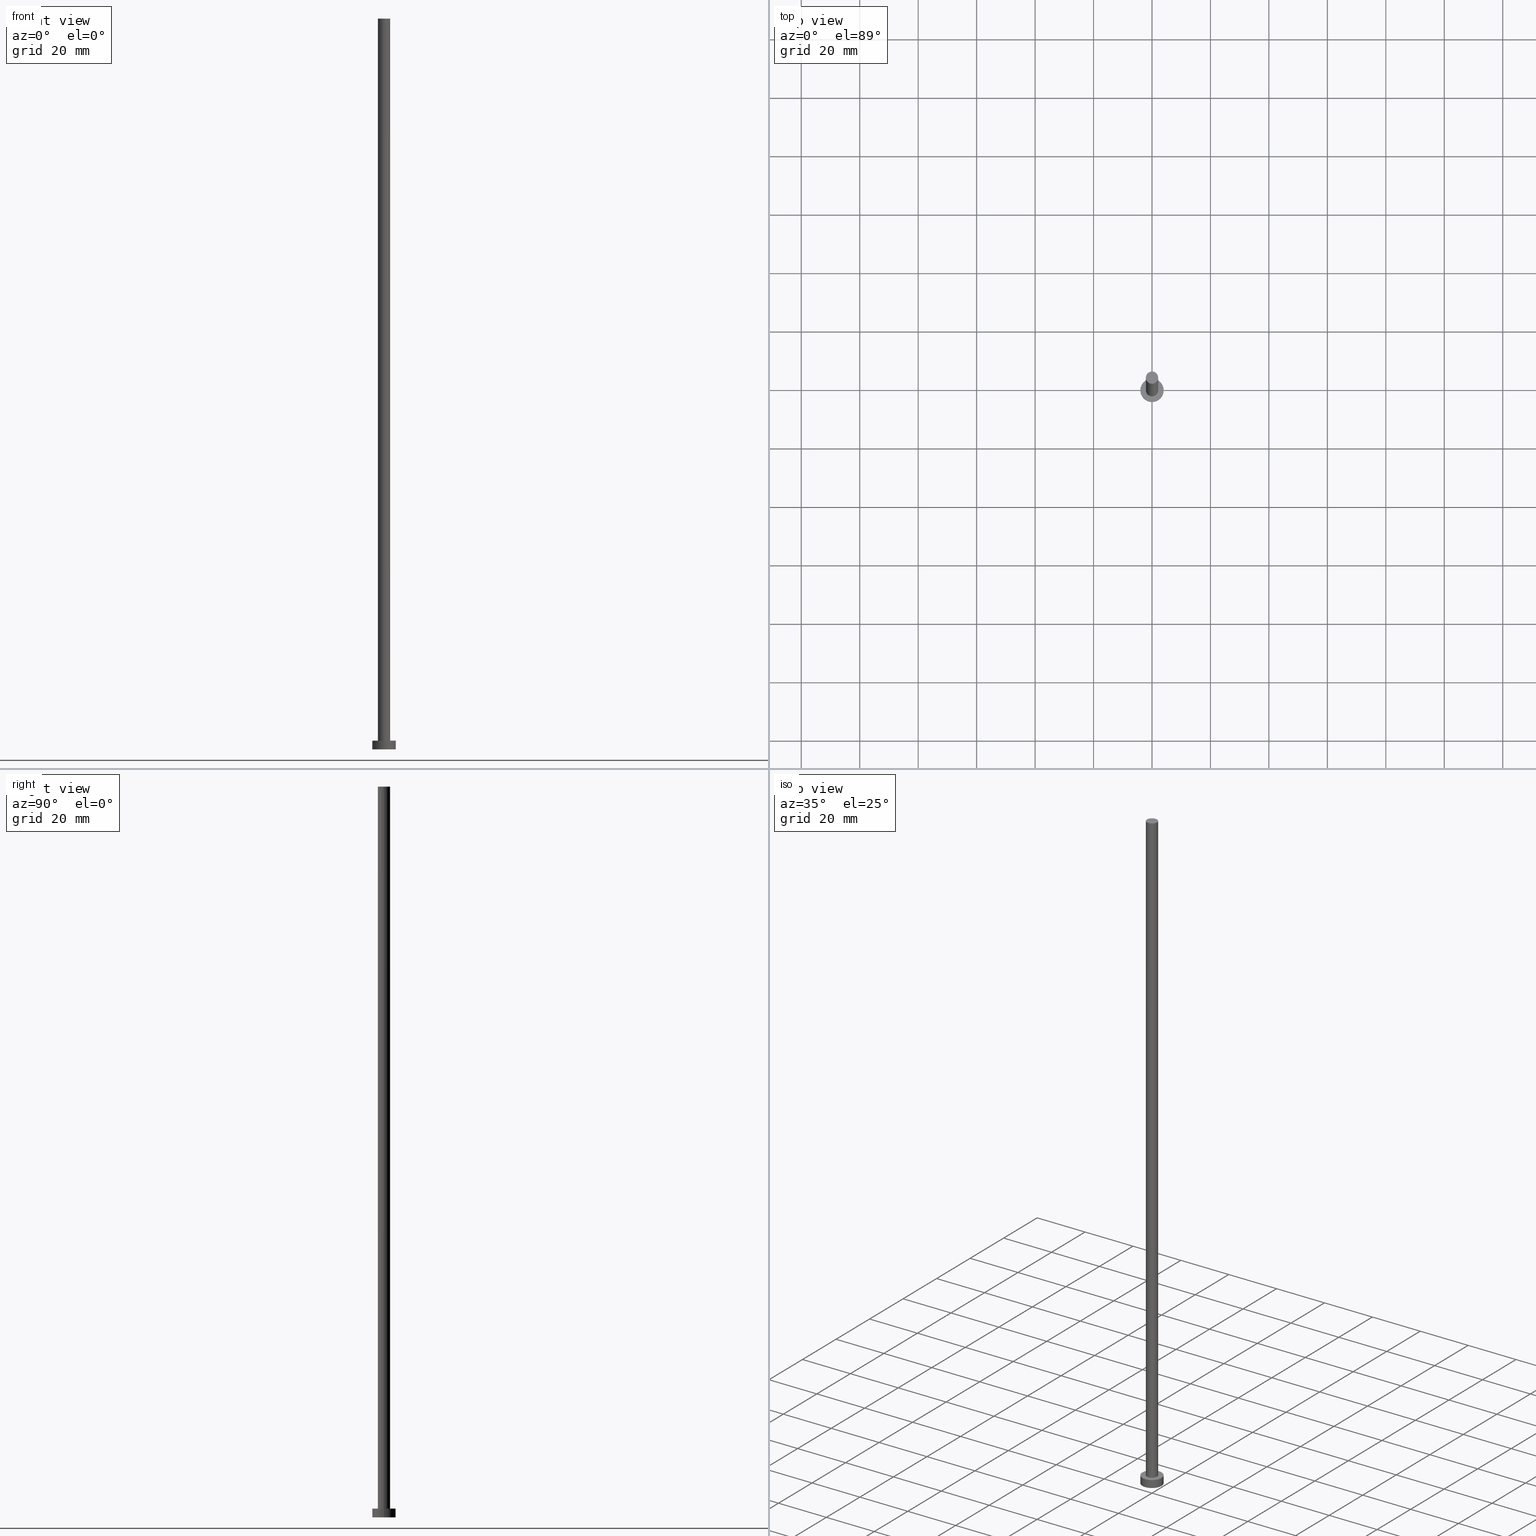
[diagram: canonical four-view strip — front | top / right | iso, engineering-drawing reading convention]
A machine part, canonical four-view strip (front | top / right | iso — engineering-drawing reading convention). The complete STEP part file that produces these views, byte-faithful:
ISO-10303-21;
HEADER;
FILE_DESCRIPTION (( 'STEP AP203' ),
    '1' );
FILE_NAME ('a9a1.STEP',
    '2023-02-12T12:36:44',
    ( '' ),
    ( '' ),
    'SwSTEP 2.0',
    'SolidWorks 2019',
    '' );
FILE_SCHEMA (( 'CONFIG_CONTROL_DESIGN' ));
ENDSEC;

DATA;
#1 = APPROVAL_DATE_TIME ( #62, #197 ) ;
#2 = SHAPE_DEFINITION_REPRESENTATION ( #76, #108 ) ;
#3 = APPROVAL_PERSON_ORGANIZATION ( #157, #22, #192 ) ;
#4 = DIRECTION ( 'NONE',  ( 0.000000000000000000, 0.000000000000000000, 1.000000000000000000 ) ) ;
#5 = CYLINDRICAL_SURFACE ( 'NONE', #156, 2.100000000000000089 ) ;
#6 = APPROVAL_PERSON_ORGANIZATION ( #216, #166, #126 ) ;
#7 = CARTESIAN_POINT ( 'NONE',  ( 0.000000000000000000, 0.000000000000000000, 0.000000000000000000 ) ) ;
#8 = UNCERTAINTY_MEASURE_WITH_UNIT (LENGTH_MEASURE( 1.000000000000000082E-05 ), #225, 'distance_accuracy_value', 'NONE');
#9 = AXIS2_PLACEMENT_3D ( 'NONE', #97, #99, #117 ) ;
#10 = EDGE_CURVE ( 'NONE', #17, #120, #160, .T. ) ;
#11 = DIRECTION ( 'NONE',  ( -1.000000000000000000, 0.000000000000000000, 0.000000000000000000 ) ) ;
#12 = DIRECTION ( 'NONE',  ( 1.000000000000000000, 0.000000000000000000, 0.000000000000000000 ) ) ;
#13 = CARTESIAN_POINT ( 'NONE',  ( -2.100000000000000089, 0.000000000000000000, 250.0000000000000000 ) ) ;
#14 = PERSON_AND_ORGANIZATION ( #253, #72 ) ;
#15 = EDGE_CURVE ( 'NONE', #17, #186, #174, .T. ) ;
#16 = CC_DESIGN_APPROVAL ( #166, ( #121 ) ) ;
#17 = VERTEX_POINT ( 'NONE', #244 ) ;
#18 = PERSON_AND_ORGANIZATION ( #253, #72 ) ;
#19 = EDGE_LOOP ( 'NONE', ( #102, #209, #138, #118 ) ) ;
#20 = MECHANICAL_CONTEXT ( 'NONE', #207, 'mechanical' ) ;
#21 = CARTESIAN_POINT ( 'NONE',  ( 0.000000000000000000, 0.000000000000000000, 250.0000000000000000 ) ) ;
#22 = APPROVAL ( #38, 'NEUR�EN�' ) ;
#23 = AXIS2_PLACEMENT_3D ( 'NONE', #142, #115, #12 ) ;
#24 = COORDINATED_UNIVERSAL_TIME_OFFSET ( 1, 0, .AHEAD. ) ;
#25 = CIRCLE ( 'NONE', #254, 2.100000000000000089 ) ;
#26 = DIRECTION ( 'NONE',  ( 1.000000000000000000, 0.000000000000000000, 0.000000000000000000 ) ) ;
#27 = PLANE ( 'NONE',  #116 ) ;
#28 = DIRECTION ( 'NONE',  ( 1.000000000000000000, 0.000000000000000000, 0.000000000000000000 ) ) ;
#29 = DIRECTION ( 'NONE',  ( -1.000000000000000000, 0.000000000000000000, 0.000000000000000000 ) ) ;
#30 = CARTESIAN_POINT ( 'NONE',  ( 2.100000000000000089, 2.571758278209441957E-16, 250.0000000000000000 ) ) ;
#31 = LOCAL_TIME ( 13, 36, 44.00000000000000000, #182 ) ;
#32 = EDGE_LOOP ( 'NONE', ( #158, #178 ) ) ;
#33 = VECTOR ( 'NONE', #63, 1000.000000000000000 ) ;
#34 = CC_DESIGN_SECURITY_CLASSIFICATION ( #121, ( #218 ) ) ;
#35 = ORIENTED_EDGE ( 'NONE', *, *, #41, .T. ) ;
#36 = LINE ( 'NONE', #135, #39 ) ;
#37 = EDGE_CURVE ( 'NONE', #59, #78, #88, .T. ) ;
#38 = APPROVAL_STATUS ( 'not_yet_approved' ) ;
#39 = VECTOR ( 'NONE', #168, 1000.000000000000000 ) ;
#40 = ORIENTED_EDGE ( 'NONE', *, *, #81, .T. ) ;
#41 = EDGE_CURVE ( 'NONE', #56, #59, #137, .T. ) ;
#42 = CARTESIAN_POINT ( 'NONE',  ( 0.000000000000000000, 0.000000000000000000, 3.000000000000000000 ) ) ;
#43 = APPROVAL_STATUS ( 'not_yet_approved' ) ;
#44 = COORDINATED_UNIVERSAL_TIME_OFFSET ( 1, 0, .AHEAD. ) ;
#45 = DIRECTION ( 'NONE',  ( 0.000000000000000000, 0.000000000000000000, 1.000000000000000000 ) ) ;
#46 = DIRECTION ( 'NONE',  ( 1.000000000000000000, 0.000000000000000000, 0.000000000000000000 ) ) ;
#47 = CC_DESIGN_APPROVAL ( #197, ( #87 ) ) ;
#48 = AXIS2_PLACEMENT_3D ( 'NONE', #7, #94, #89 ) ;
#49 = CYLINDRICAL_SURFACE ( 'NONE', #75, 2.100000000000000089 ) ;
#50 = EDGE_CURVE ( 'NONE', #78, #59, #66, .T. ) ;
#51 = PLANE ( 'NONE',  #48 ) ;
#52 = EDGE_CURVE ( 'NONE', #110, #120, #224, .T. ) ;
#53 = CYLINDRICAL_SURFACE ( 'NONE', #100, 4.000000000000000000 ) ;
#54 = EDGE_LOOP ( 'NONE', ( #58, #141 ) ) ;
#55 = CARTESIAN_POINT ( 'NONE',  ( 0.000000000000000000, 0.000000000000000000, 3.000000000000000000 ) ) ;
#56 = VERTEX_POINT ( 'NONE', #131 ) ;
#57 = APPROVAL_DATE_TIME ( #195, #22 ) ;
#58 = ORIENTED_EDGE ( 'NONE', *, *, #37, .F. ) ;
#59 = VERTEX_POINT ( 'NONE', #240 ) ;
#60 = CIRCLE ( 'NONE', #199, 4.000000000000000000 ) ;
#61 = EDGE_CURVE ( 'NONE', #154, #78, #71, .T. ) ;
#62 = DATE_AND_TIME ( #233, #133 ) ;
#63 = DIRECTION ( 'NONE',  ( -0.000000000000000000, -0.000000000000000000, -1.000000000000000000 ) ) ;
#64 = DATE_AND_TIME ( #177, #196 ) ;
#65 = COORDINATED_UNIVERSAL_TIME_OFFSET ( 1, 0, .AHEAD. ) ;
#66 = CIRCLE ( 'NONE', #113, 2.100000000000000089 ) ;
#67 = PRODUCT_RELATED_PRODUCT_CATEGORY ( 'detail', '', ( #95 ) ) ;
#68 = DIRECTION ( 'NONE',  ( 0.000000000000000000, 0.000000000000000000, 1.000000000000000000 ) ) ;
#69 = PLANE ( 'NONE',  #200 ) ;
#70 = CC_DESIGN_DATE_AND_TIME_ASSIGNMENT ( #139, #143, ( #87 ) ) ;
#71 = LINE ( 'NONE', #148, #153 ) ;
#72 = ORGANIZATION ( 'NEUR�EN�', 'NEUR�EN�', '' ) ;
#73 = DIRECTION ( 'NONE',  ( 0.000000000000000000, 0.000000000000000000, 1.000000000000000000 ) ) ;
#74 = DIRECTION ( 'NONE',  ( 1.000000000000000000, 0.000000000000000000, 0.000000000000000000 ) ) ;
#75 = AXIS2_PLACEMENT_3D ( 'NONE', #130, #202, #29 ) ;
#76 = PRODUCT_DEFINITION_SHAPE ( 'NONE', 'NONE',  #87 ) ;
#77 = ORIENTED_EDGE ( 'NONE', *, *, #52, .F. ) ;
#78 = VERTEX_POINT ( 'NONE', #152 ) ;
#79 = APPROVAL_PERSON_ORGANIZATION ( #215, #197, #212 ) ;
#80 = CALENDAR_DATE ( 2023, 12, 2 ) ;
#81 = EDGE_CURVE ( 'NONE', #120, #110, #147, .T. ) ;
#82 = DIRECTION ( 'NONE',  ( 0.000000000000000000, 0.000000000000000000, 1.000000000000000000 ) ) ;
#83 = AXIS2_PLACEMENT_3D ( 'NONE', #21, #237, #74 ) ;
#84 = SECURITY_CLASSIFICATION_LEVEL ( 'unclassified' ) ;
#85 = DIRECTION ( 'NONE',  ( 0.000000000000000000, 0.000000000000000000, 1.000000000000000000 ) ) ;
#86 = PERSON_AND_ORGANIZATION_ROLE ( 'creator' ) ;
#87 = PRODUCT_DEFINITION ( 'NEZN�M�', '', #218, #205 ) ;
#88 = CIRCLE ( 'NONE', #9, 2.100000000000000089 ) ;
#89 = DIRECTION ( 'NONE',  ( 1.000000000000000000, 0.000000000000000000, -0.000000000000000000 ) ) ;
#90 = EDGE_CURVE ( 'NONE', #186, #17, #60, .T. ) ;
#91 = CARTESIAN_POINT ( 'NONE',  ( 0.000000000000000000, 0.000000000000000000, 250.0000000000000000 ) ) ;
#92 = DIRECTION ( 'NONE',  ( 1.000000000000000000, 0.000000000000000000, 0.000000000000000000 ) ) ;
#93 = CC_DESIGN_APPROVAL ( #22, ( #218 ) ) ;
#94 = DIRECTION ( 'NONE',  ( 0.000000000000000000, 0.000000000000000000, 1.000000000000000000 ) ) ;
#95 = PRODUCT ( 'a9a1', 'a9a1', '', ( #20 ) ) ;
#96 = CIRCLE ( 'NONE', #83, 2.100000000000000089 ) ;
#97 = CARTESIAN_POINT ( 'NONE',  ( 0.000000000000000000, 0.000000000000000000, 3.000000000000000000 ) ) ;
#98 = CARTESIAN_POINT ( 'NONE',  ( 0.000000000000000000, 0.000000000000000000, 250.0000000000000000 ) ) ;
#99 = DIRECTION ( 'NONE',  ( 0.000000000000000000, 0.000000000000000000, 1.000000000000000000 ) ) ;
#100 = AXIS2_PLACEMENT_3D ( 'NONE', #55, #245, #11 ) ;
#101 = PERSON_AND_ORGANIZATION_ROLE ( 'classification_officer' ) ;
#102 = ORIENTED_EDGE ( 'NONE', *, *, #10, .F. ) ;
#103 = ORIENTED_EDGE ( 'NONE', *, *, #112, .T. ) ;
#104 = FACE_OUTER_BOUND ( 'NONE', #249, .T. ) ;
#105 = APPLICATION_PROTOCOL_DEFINITION ( 'international standard', 'config_control_design', 1994, #222 ) ;
#106 = CARTESIAN_POINT ( 'NONE',  ( -4.000000000000000000, 0.000000000000000000, 3.000000000000000000 ) ) ;
#107 = CARTESIAN_POINT ( 'NONE',  ( 0.000000000000000000, 0.000000000000000000, 0.000000000000000000 ) ) ;
#108 = ADVANCED_BREP_SHAPE_REPRESENTATION ( 'a9a1', ( #242, #188 ), #189 ) ;
#109 = FACE_OUTER_BOUND ( 'NONE', #190, .T. ) ;
#110 = VERTEX_POINT ( 'NONE', #184 ) ;
#111 = FACE_OUTER_BOUND ( 'NONE', #227, .T. ) ;
#112 = EDGE_CURVE ( 'NONE', #154, #56, #96, .T. ) ;
#113 = AXIS2_PLACEMENT_3D ( 'NONE', #146, #220, #46 ) ;
#114 = CC_DESIGN_PERSON_AND_ORGANIZATION_ASSIGNMENT ( #180, #252, ( #87 ) ) ;
#115 = DIRECTION ( 'NONE',  ( 0.000000000000000000, 0.000000000000000000, 1.000000000000000000 ) ) ;
#116 = AXIS2_PLACEMENT_3D ( 'NONE', #125, #45, #194 ) ;
#117 = DIRECTION ( 'NONE',  ( 1.000000000000000000, 0.000000000000000000, 0.000000000000000000 ) ) ;
#118 = ORIENTED_EDGE ( 'NONE', *, *, #52, .T. ) ;
#119 = PERSON_AND_ORGANIZATION_ROLE ( 'design_owner' ) ;
#120 = VERTEX_POINT ( 'NONE', #150 ) ;
#121 = SECURITY_CLASSIFICATION ( '', '', #84 ) ;
#122 = APPLICATION_PROTOCOL_DEFINITION ( 'international standard', 'config_control_design', 1994, #207 ) ;
#123 = ORIENTED_EDGE ( 'NONE', *, *, #10, .T. ) ;
#124 = CARTESIAN_POINT ( 'NONE',  ( 0.000000000000000000, 0.000000000000000000, 0.000000000000000000 ) ) ;
#125 = CARTESIAN_POINT ( 'NONE',  ( 0.000000000000000000, 0.000000000000000000, 250.0000000000000000 ) ) ;
#126 = APPROVAL_ROLE ( '' ) ;
#127 = DIRECTION ( 'NONE',  ( 1.000000000000000000, 0.000000000000000000, -0.000000000000000000 ) ) ;
#128 = DIRECTION ( 'NONE',  ( -0.000000000000000000, -0.000000000000000000, -1.000000000000000000 ) ) ;
#129 = DATE_AND_TIME ( #234, #171 ) ;
#130 = CARTESIAN_POINT ( 'NONE',  ( 0.000000000000000000, 0.000000000000000000, 250.0000000000000000 ) ) ;
#131 = CARTESIAN_POINT ( 'NONE',  ( -2.100000000000000089, 0.000000000000000000, 250.0000000000000000 ) ) ;
#132 = CC_DESIGN_PERSON_AND_ORGANIZATION_ASSIGNMENT ( #140, #119, ( #95 ) ) ;
#133 = LOCAL_TIME ( 13, 36, 44.00000000000000000, #230 ) ;
#134 =( NAMED_UNIT ( * ) SI_UNIT ( $, .STERADIAN. ) SOLID_ANGLE_UNIT ( ) );
#135 = CARTESIAN_POINT ( 'NONE',  ( -4.000000000000000000, 0.000000000000000000, 3.000000000000000000 ) ) ;
#136 =( NAMED_UNIT ( * ) PLANE_ANGLE_UNIT ( ) SI_UNIT ( $, .RADIAN. ) );
#137 = LINE ( 'NONE', #13, #213 ) ;
#138 = ORIENTED_EDGE ( 'NONE', *, *, #211, .T. ) ;
#139 = DATE_AND_TIME ( #145, #149 ) ;
#140 = PERSON_AND_ORGANIZATION ( #253, #72 ) ;
#141 = ORIENTED_EDGE ( 'NONE', *, *, #50, .F. ) ;
#142 = CARTESIAN_POINT ( 'NONE',  ( 0.000000000000000000, 0.000000000000000000, 3.000000000000000000 ) ) ;
#143 = DATE_TIME_ROLE ( 'creation_date' ) ;
#144 = CC_DESIGN_PERSON_AND_ORGANIZATION_ASSIGNMENT ( #217, #101, ( #121 ) ) ;
#145 = CALENDAR_DATE ( 2023, 12, 2 ) ;
#146 = CARTESIAN_POINT ( 'NONE',  ( 0.000000000000000000, 0.000000000000000000, 3.000000000000000000 ) ) ;
#147 = CIRCLE ( 'NONE', #170, 4.000000000000000000 ) ;
#148 = CARTESIAN_POINT ( 'NONE',  ( 2.100000000000000089, 2.571758278209441957E-16, 250.0000000000000000 ) ) ;
#149 = LOCAL_TIME ( 13, 36, 44.00000000000000000, #65 ) ;
#150 = CARTESIAN_POINT ( 'NONE',  ( 4.000000000000000000, 4.898587196589412829E-16, 0.000000000000000000 ) ) ;
#151 = ADVANCED_FACE ( 'NONE', ( #104 ), #5, .T. ) ;
#152 = CARTESIAN_POINT ( 'NONE',  ( 2.100000000000000089, 2.571758278209441957E-16, 3.000000000000000000 ) ) ;
#153 = VECTOR ( 'NONE', #128, 1000.000000000000000 ) ;
#154 = VERTEX_POINT ( 'NONE', #30 ) ;
#155 = ORIENTED_EDGE ( 'NONE', *, *, #15, .F. ) ;
#156 = AXIS2_PLACEMENT_3D ( 'NONE', #91, #223, #221 ) ;
#157 = PERSON_AND_ORGANIZATION ( #253, #72 ) ;
#158 = ORIENTED_EDGE ( 'NONE', *, *, #90, .T. ) ;
#159 = APPROVAL_STATUS ( 'not_yet_approved' ) ;
#160 = LINE ( 'NONE', #231, #33 ) ;
#161 = CARTESIAN_POINT ( 'NONE',  ( 0.000000000000000000, 0.000000000000000000, 3.000000000000000000 ) ) ;
#162 = ADVANCED_FACE ( 'NONE', ( #236 ), #49, .T. ) ;
#163 = FACE_BOUND ( 'NONE', #54, .T. ) ;
#164 = DIRECTION ( 'NONE',  ( 1.000000000000000000, 0.000000000000000000, 0.000000000000000000 ) ) ;
#165 = ORIENTED_EDGE ( 'NONE', *, *, #37, .T. ) ;
#166 = APPROVAL ( #43, 'NEUR�EN�' ) ;
#167 = FACE_OUTER_BOUND ( 'NONE', #176, .T. ) ;
#168 = DIRECTION ( 'NONE',  ( -0.000000000000000000, -0.000000000000000000, -1.000000000000000000 ) ) ;
#169 = ADVANCED_FACE ( 'NONE', ( #109 ), #187, .T. ) ;
#170 = AXIS2_PLACEMENT_3D ( 'NONE', #107, #73, #28 ) ;
#171 = LOCAL_TIME ( 13, 36, 44.00000000000000000, #24 ) ;
#172 = ORIENTED_EDGE ( 'NONE', *, *, #243, .F. ) ;
#173 = DIRECTION ( 'NONE',  ( -0.000000000000000000, -0.000000000000000000, -1.000000000000000000 ) ) ;
#174 = CIRCLE ( 'NONE', #23, 4.000000000000000000 ) ;
#175 = ADVANCED_FACE ( 'NONE', ( #111 ), #51, .F. ) ;
#176 = EDGE_LOOP ( 'NONE', ( #238, #103 ) ) ;
#177 = CALENDAR_DATE ( 2023, 12, 2 ) ;
#178 = ORIENTED_EDGE ( 'NONE', *, *, #15, .T. ) ;
#179 = ADVANCED_FACE ( 'NONE', ( #167 ), #27, .T. ) ;
#180 = PERSON_AND_ORGANIZATION ( #253, #72 ) ;
#181 = FACE_OUTER_BOUND ( 'NONE', #32, .T. ) ;
#182 = COORDINATED_UNIVERSAL_TIME_OFFSET ( 1, 0, .AHEAD. ) ;
#183 = FACE_OUTER_BOUND ( 'NONE', #19, .T. ) ;
#184 = CARTESIAN_POINT ( 'NONE',  ( -4.000000000000000000, 0.000000000000000000, 0.000000000000000000 ) ) ;
#185 = ADVANCED_FACE ( 'NONE', ( #163, #181 ), #69, .T. ) ;
#186 = VERTEX_POINT ( 'NONE', #106 ) ;
#187 = CYLINDRICAL_SURFACE ( 'NONE', #246, 4.000000000000000000 ) ;
#188 = AXIS2_PLACEMENT_3D ( 'NONE', #124, #82, #26 ) ;
#189 =( GEOMETRIC_REPRESENTATION_CONTEXT ( 3 ) GLOBAL_UNCERTAINTY_ASSIGNED_CONTEXT ( ( #8 ) ) GLOBAL_UNIT_ASSIGNED_CONTEXT ( ( #225, #136, #134 ) ) REPRESENTATION_CONTEXT ( 'NONE', 'WORKASPACE' ) );
#190 = EDGE_LOOP ( 'NONE', ( #155, #123, #40, #250 ) ) ;
#191 = CLOSED_SHELL ( 'NONE', ( #151, #169, #204, #185, #175, #162, #179 ) ) ;
#192 = APPROVAL_ROLE ( '' ) ;
#193 = ORIENTED_EDGE ( 'NONE', *, *, #41, .F. ) ;
#194 = DIRECTION ( 'NONE',  ( 1.000000000000000000, 0.000000000000000000, -0.000000000000000000 ) ) ;
#195 = DATE_AND_TIME ( #80, #31 ) ;
#196 = LOCAL_TIME ( 13, 36, 44.00000000000000000, #44 ) ;
#197 = APPROVAL ( #159, 'NEUR�EN�' ) ;
#198 = CARTESIAN_POINT ( 'NONE',  ( 0.000000000000000000, 0.000000000000000000, 0.000000000000000000 ) ) ;
#199 = AXIS2_PLACEMENT_3D ( 'NONE', #201, #85, #164 ) ;
#200 = AXIS2_PLACEMENT_3D ( 'NONE', #161, #68, #127 ) ;
#201 = CARTESIAN_POINT ( 'NONE',  ( 0.000000000000000000, 0.000000000000000000, 3.000000000000000000 ) ) ;
#202 = DIRECTION ( 'NONE',  ( -0.000000000000000000, -0.000000000000000000, -1.000000000000000000 ) ) ;
#203 = EDGE_LOOP ( 'NONE', ( #229, #172, #35, #165 ) ) ;
#204 = ADVANCED_FACE ( 'NONE', ( #183 ), #53, .T. ) ;
#205 = DESIGN_CONTEXT ( 'detailed design', #222, 'design' ) ;
#206 = DIRECTION ( 'NONE',  ( 1.000000000000000000, 0.000000000000000000, 0.000000000000000000 ) ) ;
#207 = APPLICATION_CONTEXT ( 'configuration controlled 3d designs of mechanical parts and assemblies' ) ;
#208 = CC_DESIGN_DATE_AND_TIME_ASSIGNMENT ( #64, #248, ( #121 ) ) ;
#209 = ORIENTED_EDGE ( 'NONE', *, *, #90, .F. ) ;
#210 = ORIENTED_EDGE ( 'NONE', *, *, #112, .F. ) ;
#211 = EDGE_CURVE ( 'NONE', #186, #110, #36, .T. ) ;
#212 = APPROVAL_ROLE ( '' ) ;
#213 = VECTOR ( 'NONE', #173, 1000.000000000000000 ) ;
#214 = ORIENTED_EDGE ( 'NONE', *, *, #50, .T. ) ;
#215 = PERSON_AND_ORGANIZATION ( #253, #72 ) ;
#216 = PERSON_AND_ORGANIZATION ( #253, #72 ) ;
#217 = PERSON_AND_ORGANIZATION ( #253, #72 ) ;
#218 = PRODUCT_DEFINITION_FORMATION_WITH_SPECIFIED_SOURCE ( 'LIBOVOLN�', '', #95, .NOT_KNOWN. ) ;
#219 = DIRECTION ( 'NONE',  ( -1.000000000000000000, 0.000000000000000000, 0.000000000000000000 ) ) ;
#220 = DIRECTION ( 'NONE',  ( 0.000000000000000000, 0.000000000000000000, 1.000000000000000000 ) ) ;
#221 = DIRECTION ( 'NONE',  ( -1.000000000000000000, 0.000000000000000000, 0.000000000000000000 ) ) ;
#222 = APPLICATION_CONTEXT ( 'configuration controlled 3d designs of mechanical parts and assemblies' ) ;
#223 = DIRECTION ( 'NONE',  ( -0.000000000000000000, -0.000000000000000000, -1.000000000000000000 ) ) ;
#224 = CIRCLE ( 'NONE', #251, 4.000000000000000000 ) ;
#225 =( LENGTH_UNIT ( ) NAMED_UNIT ( * ) SI_UNIT ( .MILLI., .METRE. ) );
#226 = CC_DESIGN_PERSON_AND_ORGANIZATION_ASSIGNMENT ( #14, #232, ( #218 ) ) ;
#227 = EDGE_LOOP ( 'NONE', ( #77, #228 ) ) ;
#228 = ORIENTED_EDGE ( 'NONE', *, *, #81, .F. ) ;
#229 = ORIENTED_EDGE ( 'NONE', *, *, #61, .F. ) ;
#230 = COORDINATED_UNIVERSAL_TIME_OFFSET ( 1, 0, .AHEAD. ) ;
#231 = CARTESIAN_POINT ( 'NONE',  ( 4.000000000000000000, 4.898587196589412829E-16, 3.000000000000000000 ) ) ;
#232 = PERSON_AND_ORGANIZATION_ROLE ( 'design_supplier' ) ;
#233 = CALENDAR_DATE ( 2023, 12, 2 ) ;
#234 = CALENDAR_DATE ( 2023, 12, 2 ) ;
#235 = DIRECTION ( 'NONE',  ( -0.000000000000000000, -0.000000000000000000, -1.000000000000000000 ) ) ;
#236 = FACE_OUTER_BOUND ( 'NONE', #203, .T. ) ;
#237 = DIRECTION ( 'NONE',  ( 0.000000000000000000, 0.000000000000000000, 1.000000000000000000 ) ) ;
#238 = ORIENTED_EDGE ( 'NONE', *, *, #243, .T. ) ;
#239 = APPROVAL_DATE_TIME ( #129, #166 ) ;
#240 = CARTESIAN_POINT ( 'NONE',  ( -2.100000000000000089, 0.000000000000000000, 3.000000000000000000 ) ) ;
#241 = DIRECTION ( 'NONE',  ( 0.000000000000000000, 0.000000000000000000, 1.000000000000000000 ) ) ;
#242 = MANIFOLD_SOLID_BREP ( 'P�idat vysunut�m3', #191 ) ;
#243 = EDGE_CURVE ( 'NONE', #56, #154, #25, .T. ) ;
#244 = CARTESIAN_POINT ( 'NONE',  ( 4.000000000000000000, 4.898587196589412829E-16, 3.000000000000000000 ) ) ;
#245 = DIRECTION ( 'NONE',  ( -0.000000000000000000, -0.000000000000000000, -1.000000000000000000 ) ) ;
#246 = AXIS2_PLACEMENT_3D ( 'NONE', #42, #235, #219 ) ;
#247 = ORIENTED_EDGE ( 'NONE', *, *, #61, .T. ) ;
#248 = DATE_TIME_ROLE ( 'classification_date' ) ;
#249 = EDGE_LOOP ( 'NONE', ( #210, #247, #214, #193 ) ) ;
#250 = ORIENTED_EDGE ( 'NONE', *, *, #211, .F. ) ;
#251 = AXIS2_PLACEMENT_3D ( 'NONE', #198, #4, #92 ) ;
#252 = PERSON_AND_ORGANIZATION_ROLE ( 'creator' ) ;
#253 = PERSON ( 'NEUR�EN�', 'NEUR�EN�', 'NEUR�EN�', ('NEUR�EN�'), ('NEUR�EN�'), ('NEUR�EN�') ) ;
#254 = AXIS2_PLACEMENT_3D ( 'NONE', #98, #241, #206 ) ;
#255 = CC_DESIGN_PERSON_AND_ORGANIZATION_ASSIGNMENT ( #18, #86, ( #218 ) ) ;
ENDSEC;
END-ISO-10303-21;
